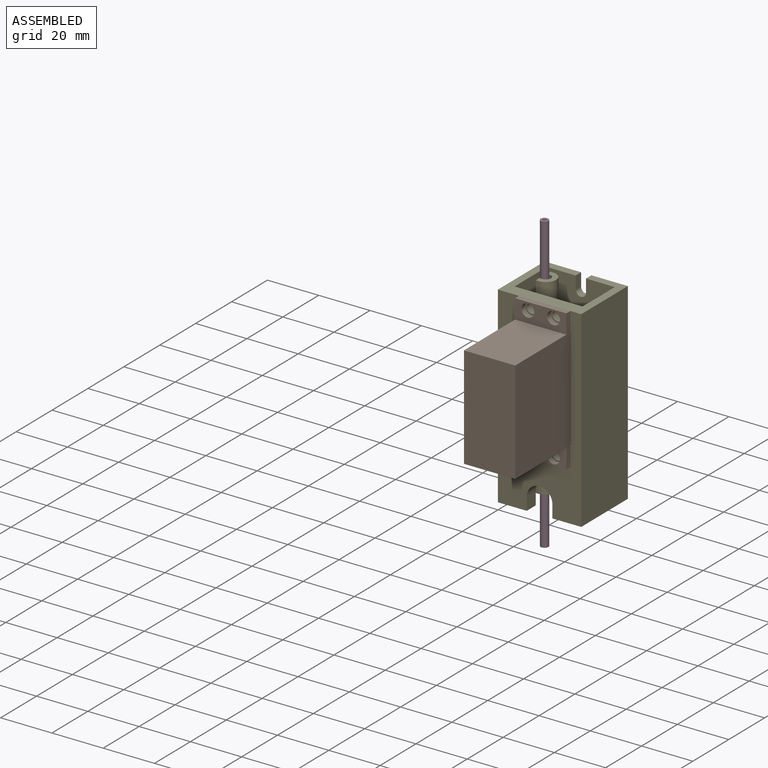
[diagram: assembled view]
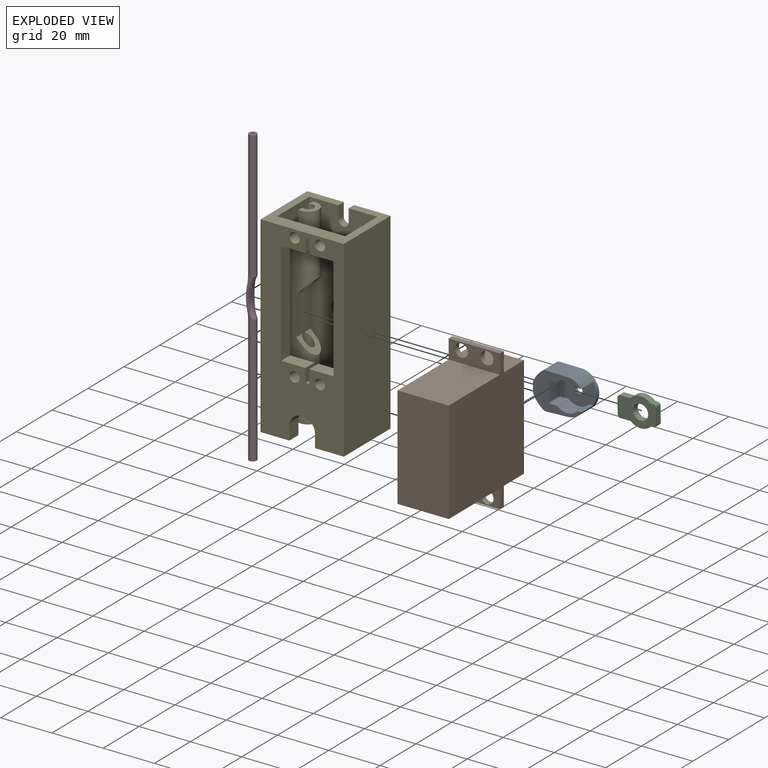
[diagram: exploded view]
GUIDED TOUR — FREECAD ASSEMBLY "ValveAssembly"

This assembly has 5 components, labeled P0..P4 below (a component is one placed body or linked part; the same part can appear more than once), held together by 0 modeled joints plus 6 derived contact edges. A joint is a constraint between two components; its type names the relative motion it leaves free:
  CONTACT — a derived adjacency edge — the two components touch in the source model (clearance under 2% of the assembly's diagonal); it is measured from the geometry, not a modeled constraint.
Axis/direction vectors are unit vectors and 'through' points are millimeter coordinates, both in the assembly's world frame.

MATES
  1. CONTACT "contact_0_1": P0 <-> P1, contact direction (0.000, -1.000, 0.000) through (-4.40, -2.05, 41.65) mm (derived from contact, not a modeled constraint)
  2. CONTACT "contact_0_2": P0 <-> P2, contact direction (1.000, 0.000, 0.000) through (0.76, 4.20, 43.25) mm (derived from contact, not a modeled constraint)
  3. CONTACT "contact_0_3": P0 <-> P3, contact direction (-1.000, 0.000, 0.000) through (-10.76, 5.20, 37.47) mm (derived from contact, not a modeled constraint)
  4. CONTACT "contact_1_2": P1 <-> P2, contact direction (-0.220, 0.898, -0.381) through (1.07, 1.90, 34.96) mm (derived from contact, not a modeled constraint)
  5. CONTACT "contact_1_4": P1 <-> P4, contact direction (-0.220, 0.898, -0.381) through (1.38, -14.00, 22.00) mm (derived from contact, not a modeled constraint)
  6. CONTACT "contact_3_4": P3 <-> P4, contact direction (1.000, 0.000, 0.000) through (-11.25, 2.70, 45.00) mm (derived from contact, not a modeled constraint)

ASSEMBLY ORDER
  1. P0 — the base component [order heuristic]
  2. P2 — core [order heuristic]
  3. P1 [order verified]
  4. P4 [order verified]
  5. P3 [order verified]
(P3 verified with a relaxed clearance tolerance: the source model stores slight part interference there.)
Order-tag legend:
  [order verified] — this step's position reverses a verified removal order: the component was checked to insert without passing through the ones already placed.
  [order heuristic] — the first 2 components form the assembly's core: parts whose collision-free extraction could not be verified, listed in mate-graph order.

Of the 5 components, 3 carry a construction recipe — the FreeCAD feature program (sketches with constraints, then the solid features that consume them) that regenerates the part from scratch, quoted from this document or from the linked companion document it references; the rest are supplied as boundary geometry only. The tour below walks the components in assembly order: each is shown spotlighted twice — in the assembled view, then in the exploded view, where a leader line traces a displaced component back to its assembled socket (components that stay in place when exploded have no leader line; saturated green if recipe-attached, orange if geometry-only; every other component desaturated gray) — followed by its recipe or geometry summary and the mates that hold it.
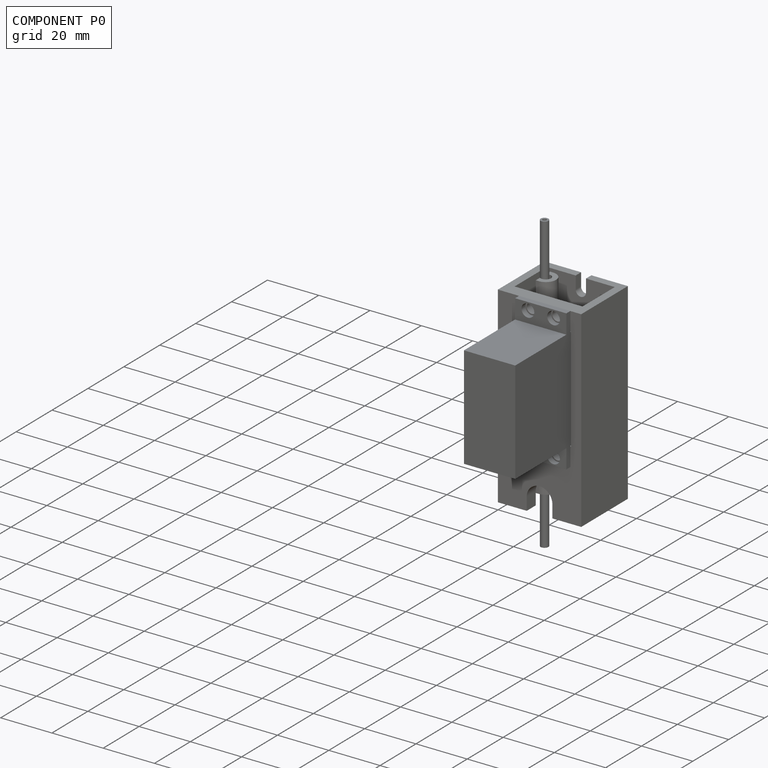
[diagram: component P0 — assembled]
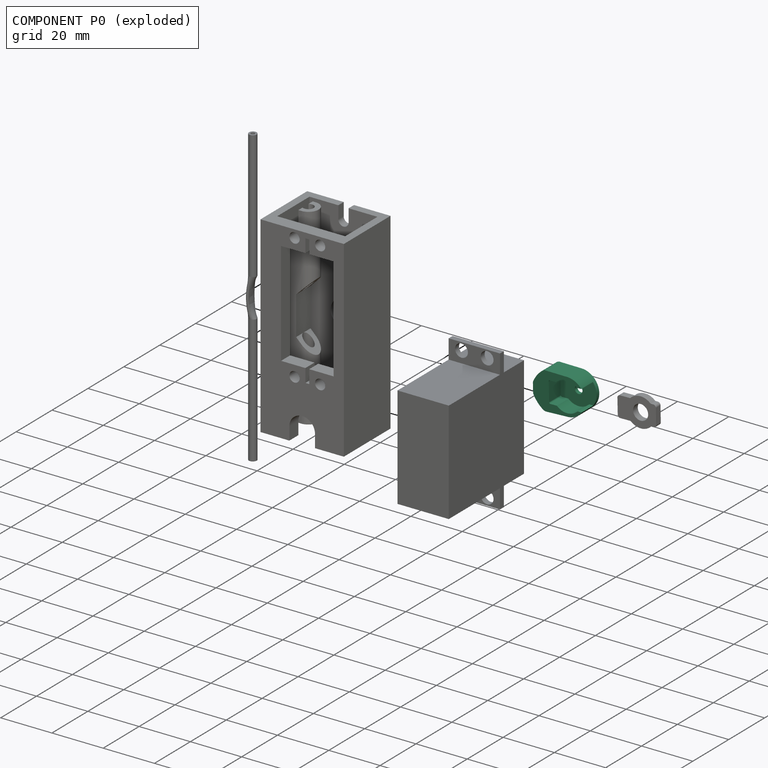
[diagram: component P0 — exploded]
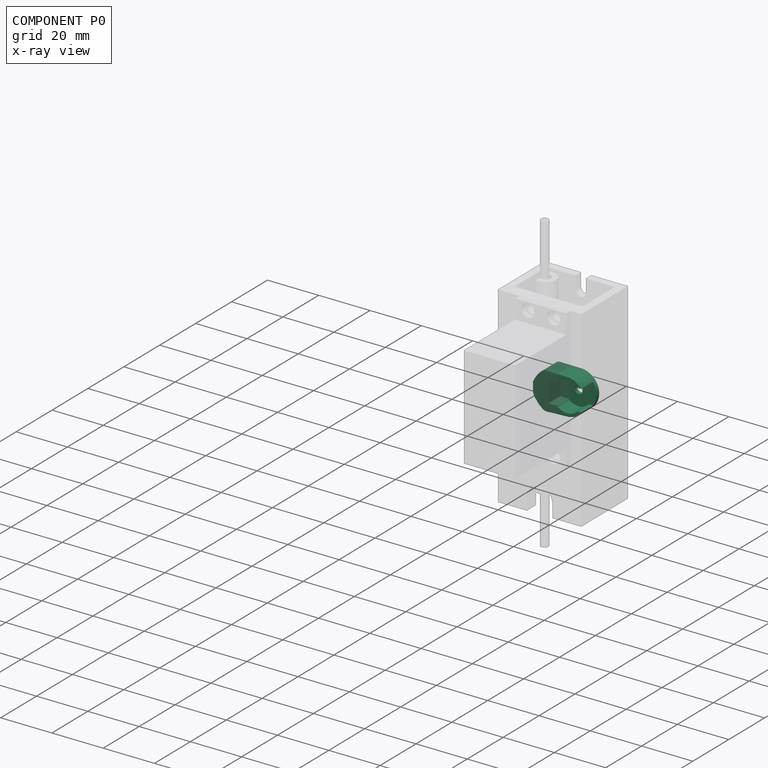
[diagram: component P0 — x-ray view]
COMPONENT P0 — recipe-attached ("Pincher001", a linked part whose construction recipe lives in a companion FreeCAD document of the same project; that document's serialized recipe follows).
Held by: resting contact with P1 (derived edge); resting contact with P2 (derived edge); resting contact with P3 (derived edge).
Construction recipe (the companion document, serialized — sketch geometry with constraints, then the solid features built on it; lengths are millimeters unless a unit is written):

FCSTD DOCUMENT  (FreeCAD 1.1R20260414 (Git shallow))
Label: Pincher
Comment: Source: ServoQuetsch https://gitlab.com/mikeventor1/ServoQuetsch (CERN-OHL-P-2.0). Multi-file bundle: parts driven by VarSet in V.FCStd.
License: CERN Open Hardware Licence Version 2 - Permissive
LicenseURL: https://ohwr.org/cernohl
objects: Sketcher::SketchObject×3, PartDesign::Mirrored×2, PartDesign::Pocket×2, App::Point×1, PartDesign::Pad×1, PartDesign::Fillet×1, PartDesign::Body×1
note: 23 computed .brp shape members not serialized (recipe doc carries the construction recipe); baked Part::Feature solids carry a one-line shape summary decoded from their .brp
EXTERNAL_REF file=V.FCStd obj=VarSet

FEATURE [App::Point] Origin001  label="Ursprung"
  Role = Origin
FEATURE [Sketcher::SketchObject] Sketch004  label="Pincher"
  ArcFitTolerance = 1e-06
  AttachmentSupport = -> [Origin]
  ExternalTypes = [0,0]
  FullyConstrained = true
  MakeInternals = false
  MapMode = 5
  _ExternalGeoVersion = 1
  expr: .Constraints.PinchStartAngle = <<V>>#<<VarSet>>.PinchStartAngle
  expr: Constraints[3] = <<V>>#<<VarSet>>.PinchEndL
  expr: Constraints[4] = <<V>>#<<VarSet>>.PinchStartL
  expr: Constraints[6] = <<V>>#<<VarSet>>.PinchStartAngle / 2
  expr: Constraints[7] = (<<V>>#<<VarSet>>.PinchEndL + <<V>>#<<VarSet>>.PinchStartL) / 2
  sketch-geometry (16):
    g0: GeomPoint X=13.25 Y=-2 Z=0
    g1: LineSegment [constr] StartX=13.25 StartY=-2 StartZ=0 EndX=0 EndY=-2 EndZ=0
    g2: LineSegment [constr] StartX=13.25 StartY=-2 StartZ=0 EndX=4.37324 EndY=-7.125 EndZ=0
    g3: LineSegment [constr] StartX=13.25 StartY=-2 StartZ=0 EndX=1.90037 EndY=-5.04112 EndZ=0
    g4: ArcOfCircle CenterX=11.1148 CenterY=2.83301 CenterZ=0 NormalX=0 NormalY=0 NormalZ=1 AngleXU=0 Radius=12.1205 StartAngle=3.59119 EndAngle=4.06202
    g5: LineSegment StartX=0 StartY=0 StartZ=0 EndX=0 EndY=-1.5654 EndZ=0
    g6: ArcOfCircle CenterX=2 CenterY=-1.5654 CenterZ=0 NormalX=0 NormalY=0 NormalZ=1 AngleXU=0 Radius=2 StartAngle=3.14159 EndAngle=3.59119
    g7: LineSegment [constr] StartX=0 StartY=-1.5654 StartZ=0 EndX=0.198755 EndY=-2.4346 EndZ=0
    g8: LineSegment [constr] StartX=0 StartY=0 StartZ=0 EndX=13.25 EndY=0 EndZ=0
    g9: ArcOfCircle CenterX=13.25 CenterY=0 CenterZ=0 NormalX=0 NormalY=0 NormalZ=1 AngleXU=0 Radius=7 StartAngle=4.73897 EndAngle=6.28319
    g10: LineSegment StartX=0 StartY=0 StartZ=0 EndX=20.25 EndY=0 EndZ=0
    g11: LineSegment StartX=5.04013 StartY=-7.22079 StartZ=0 EndX=13.4361 EndY=-6.99753 EndZ=0
    g12: ArcOfCircle CenterX=4.98696 CenterY=-5.22149 CenterZ=0 NormalX=0 NormalY=0 NormalZ=1 AngleXU=0 Radius=2 StartAngle=4.06202 EndAngle=4.73897
    g13: LineSegment [constr] StartX=2 StartY=-1.5654 StartZ=0 EndX=0.0993777 EndY=-2 EndZ=0
    g14: LineSegment [constr] StartX=3.776 StartY=-6.81321 StartZ=0 EndX=4.37324 EndY=-7.125 EndZ=0
    g15: LineSegment [constr] StartX=4.37324 StartY=-7.125 StartZ=0 EndX=5.04013 EndY=-7.22079 EndZ=0
  constraints (40):
    c: Coincident(g1,g0)
    c: Coincident(g2,g0)
    c: Angle(g1,g2) = 0.523599  'PinchStartAngle'
    c: DistanceX(g1,g1) = 13.25
    c: Distance(g2,g2) = 10.25
    c: Coincident(g3,g0)
    c: Angle(g1,g3) = 0.261799
    c: Distance(g3,g3) = 11.75
    c: PointOnObject(g3,g4)
    c: Coincident(g5,g-1)
    c: PointOnObject(g1,g-2)
    c: DistanceY(g1,g5) = 2
    c: Tangent(g5,g6) = -1.5708
    c: Tangent(g4,g6) = -1.5708
    c: Radius(g6) = 2
    c: Vertical(g5)
    c: Coincident(g7,g5)
    c: Coincident(g7,g4)
    c: Coincident(g8,g5)
    c: PointOnObject(g8,g-1)
    c: Equal(g8,g1)
    c: Coincident(g9,g8)
    c: PointOnObject(g9,g-1)
    c: Coincident(g10,g5)
    c: Coincident(g10,g9)
    c: Radius(g9) = 7
    c: Tangent(g11,g9) = -1.5708
    c: Tangent(g11,g12) = -1.5708
    c: Tangent(g4,g12) = -1.5708
    c: Radius(g12) = 2
    c: Coincident(g13,g6)
    c: Symmetric(g7,g7,g13)
    c: PointOnObject(g13,g1)
    c: PointOnObject(g2,g12)
    c: Horizontal(g1)
    c: Coincident(g14,g4)
    c: Coincident(g14,g2)
    c: Coincident(g15,g2)
    c: Coincident(g15,g11)
    c: Equal(g15,g14)
FEATURE [PartDesign::Pad] Pad
  Direction = (0,0,1)
  Length = 8
  Length2 = 10
  Profile = -> Sketch004
  ReferenceAxis = -> Sketch004 [N_Axis]
  SideType = 0
  Suppressed = false
  Type = 0
  Type2 = 0
  expr: Length = <<V>>#<<VarSet>>.PincherH
FEATURE [PartDesign::Mirrored] Mirrored
  BaseFeature = -> Pad
  MirrorPlane = -> Sketch004 [H_Axis]
  Originals = -> [Pad]
  Suppressed = false
  TransformMode = 0
FEATURE [Sketcher::SketchObject] Sketch
  ArcFitTolerance = 1e-06
  AttachmentSupport = -> [Origin]
  ExternalGeometry = -> [Mirrored]
  ExternalTypes = [0]
  FullyConstrained = true
  MakeInternals = false
  MapMode = 5
  _ExternalGeoVersion = 1
  sketch-geometry (1):
    g0: Circle CenterX=13.25 CenterY=0 CenterZ=0 NormalX=0 NormalY=0 NormalZ=1 AngleXU=0 Radius=1.5
  constraints (2):
    c: Coincident(g0,g-3)
    c: Diameter(g0) = 3
FEATURE [Sketcher::SketchObject] Sketch005  label="ServoConnect"
  ArcFitTolerance = 1e-06
  AttachmentSupport = -> [Mirrored]
  ExternalGeometry = -> [Mirrored]
  ExternalTypes = [0]
  FullyConstrained = true
  MakeInternals = false
  MapMode = 5
  Placement = pos=(0,0,8) rot=(0,0,1;0rad)
  _ExternalGeoVersion = 1
  expr: Constraints[10] = 4 + <<V>>#<<VarSet>>.ServoConnectOffset
  expr: Constraints[15] = 5.65 + <<V>>#<<VarSet>>.ServoConnectOffset
  sketch-geometry (6):
    g0: LineSegment StartX=17.2917 StartY=-4.125 StartZ=0 EndX=20.2917 EndY=-4.125 EndZ=0
    g1: LineSegment StartX=20.2917 StartY=-4.125 StartZ=0 EndX=20.2917 EndY=0 EndZ=0
    g2: LineSegment StartX=9.20834 StartY=-4.125 StartZ=0 EndX=6.20834 EndY=-4.125 EndZ=0
    g3: LineSegment StartX=6.20834 StartY=-4.125 StartZ=0 EndX=6.20834 EndY=0 EndZ=0
    g4: LineSegment StartX=20.2917 StartY=0 StartZ=0 EndX=6.20834 EndY=0 EndZ=0
    g5: ArcOfCircle CenterX=13.25 CenterY=0 CenterZ=0 NormalX=0 NormalY=0 NormalZ=1 AngleXU=0 Radius=5.775 StartAngle=3.9372 EndAngle=5.48758
  constraints (17):
    c: Coincident(g1,g0)
    c: Coincident(g3,g2)
    c: Equal(g2,g0)
    c: Coincident(g4,g1)
    c: Coincident(g4,g3)
    c: Perpendicular(g2,g3)
    c: Perpendicular(g1,g0)
    c: Perpendicular(g4,g1)
    c: Perpendicular(g3,g4)
    c: Distance(g0,g0) = 3
    c: Distance(g1,g1) = 4.125
    c: Horizontal(g4)
    c: Symmetric(g4,g4,g5)
    c: Coincident(g5,g2)
    c: Coincident(g5,g0)
    c: Radius(g5) = 5.775
    c: Coincident(g5,g-3)
FEATURE [PartDesign::Pocket] Pocket
  BaseFeature = -> Mirrored
  Direction = (0,0,-1)
  Length = 6.5
  Length2 = 5
  Profile = -> Sketch005
  ReferenceAxis = -> Sketch005 [N_Axis]
  SideType = 0
  Suppressed = false
  Type = 0
  Type2 = 0
  expr: Length = <<V>>#<<VarSet>>.PincherH - <<V>>#<<VarSet>>.PinchBottomT
FEATURE [PartDesign::Mirrored] Mirrored001
  BaseFeature = -> Pocket
  MirrorPlane = -> Sketch005 [H_Axis]
  Originals = -> [Pocket]
  Suppressed = false
  TransformMode = 0
FEATURE [PartDesign::Pocket] Pocket001
  BaseFeature = -> Mirrored001
  Direction = (0,0,-1)
  Length = 5
  Length2 = 5
  Profile = -> Sketch
  ReferenceAxis = -> Sketch [N_Axis]
  Reversed = true
  SideType = 0
  Suppressed = false
  Type = 1
  Type2 = 0
FEATURE [PartDesign::Fillet] Fillet
  Base = -> Pocket001 [Edge65,Edge52]
  BaseFeature = -> Pocket001
  Radius = 0.5
  SupportTransform = false
  Suppressed = false
  UseAllEdges = false
FEATURE [PartDesign::Body] Body  label="Pincher001"
  AllowCompound = false
  Group = -> [Sketch004,Pad,Mirrored,Sketch,Sketch005,Pocket,Mirrored001,Pocket001,Fillet]
  Origin = -> Origin
  Tip = -> Fillet
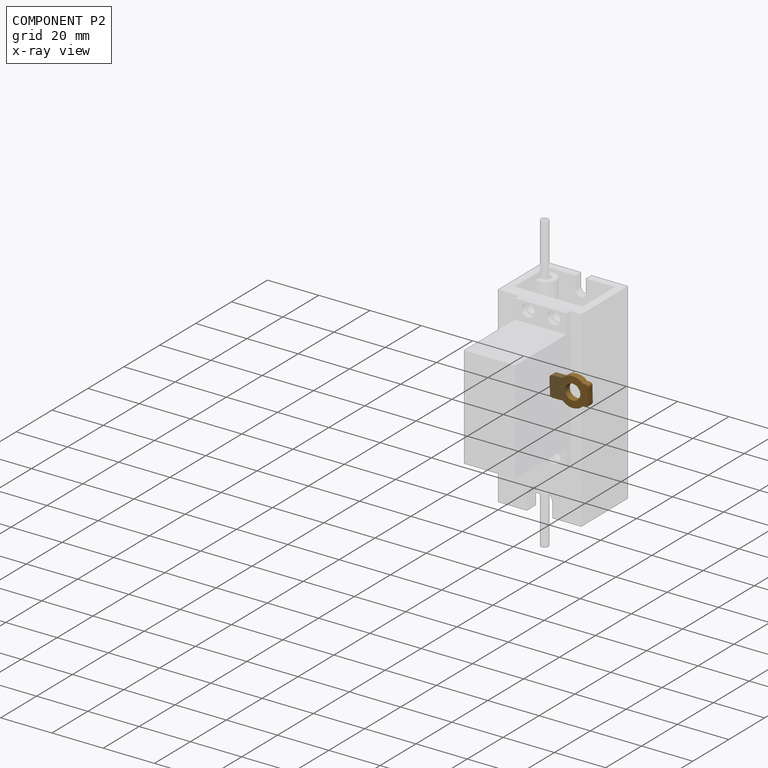
[diagram: component P2 — x-ray view]
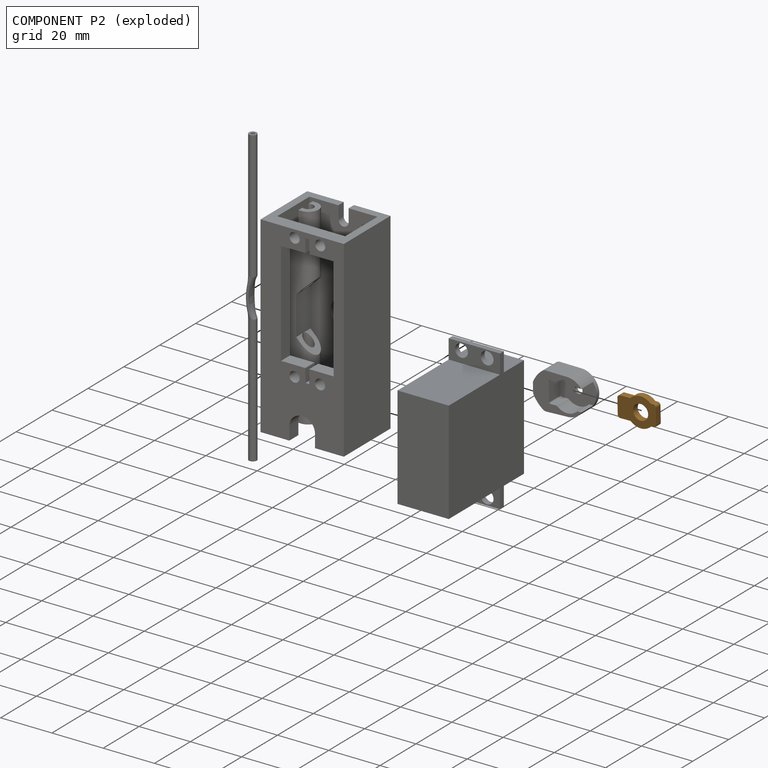
[diagram: component P2 — exploded]
COMPONENT P2 — geometry summary ("ServoConnector"; no construction recipe available for this part):
  bounding box: 15.1 x 11.3 x 2.6 mm
  tessellated surface: 1,308 triangles
  volume: 286 mm^3 (64% of its bounding box)
  symmetry: mirror-symmetric across its y mid-plane
Held by: resting contact with P0 (derived edge); resting contact with P1 (derived edge).
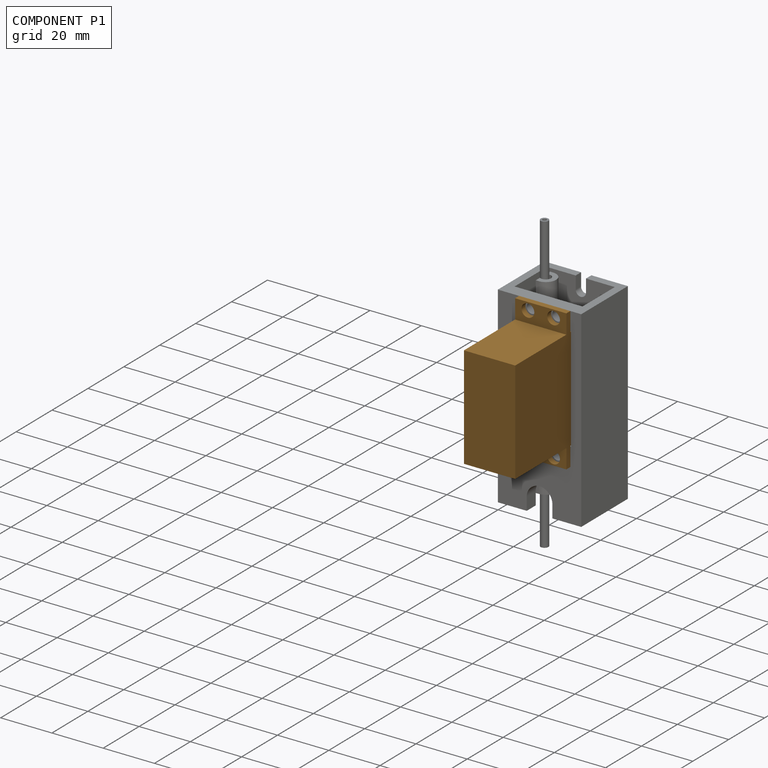
[diagram: component P1 — assembled]
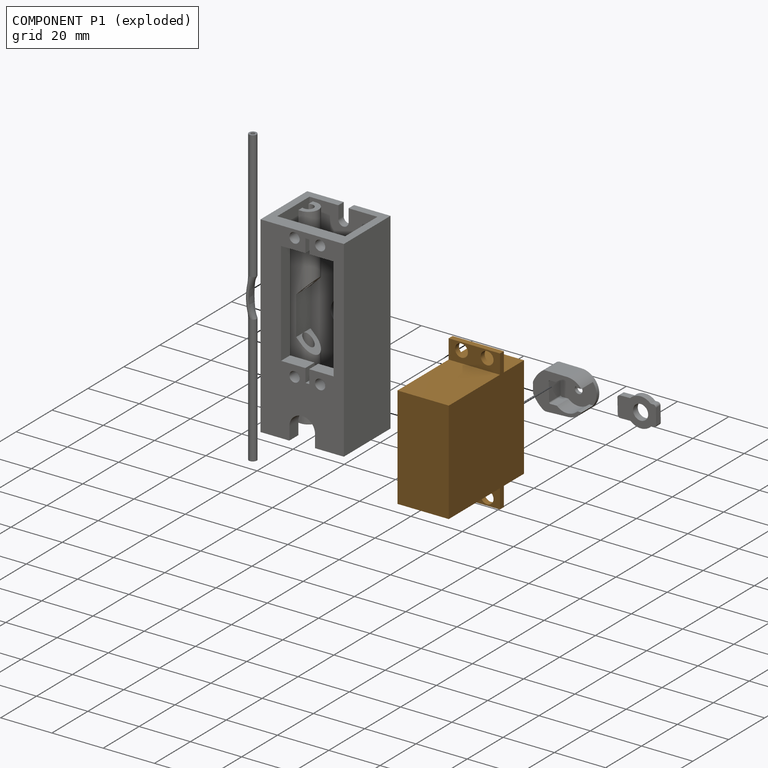
[diagram: component P1 — exploded]
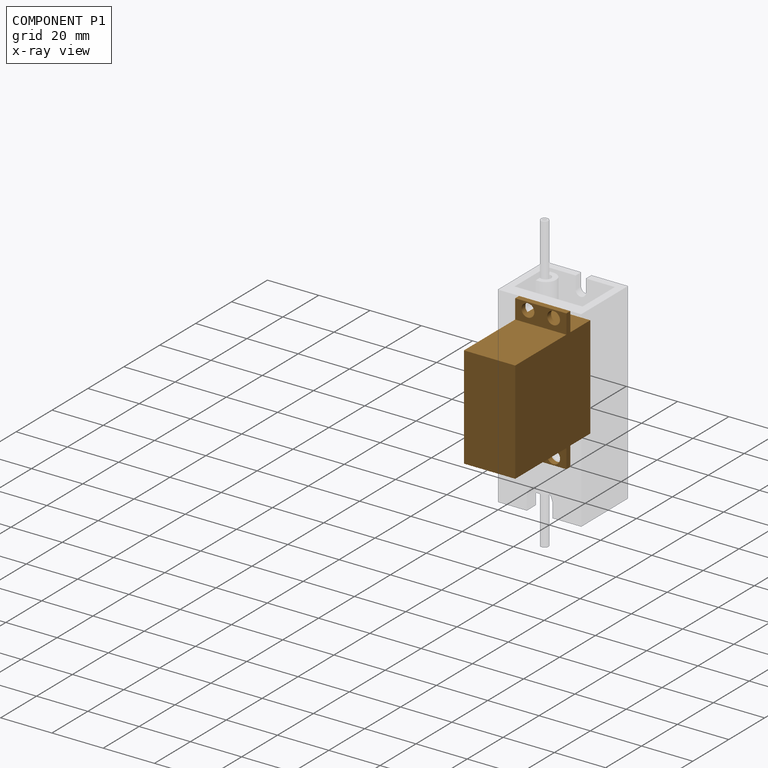
[diagram: component P1 — x-ray view]
COMPONENT P1 — geometry summary ("Servo"; no construction recipe available for this part):
  bounding box: 55.0 x 46.9 x 20.0 mm
  tessellated surface: 3,108 triangles
  volume: 34302 mm^3 (66% of its bounding box)
Held by: resting contact with P0 (derived edge); resting contact with P2 (derived edge); resting contact with P4 (derived edge).
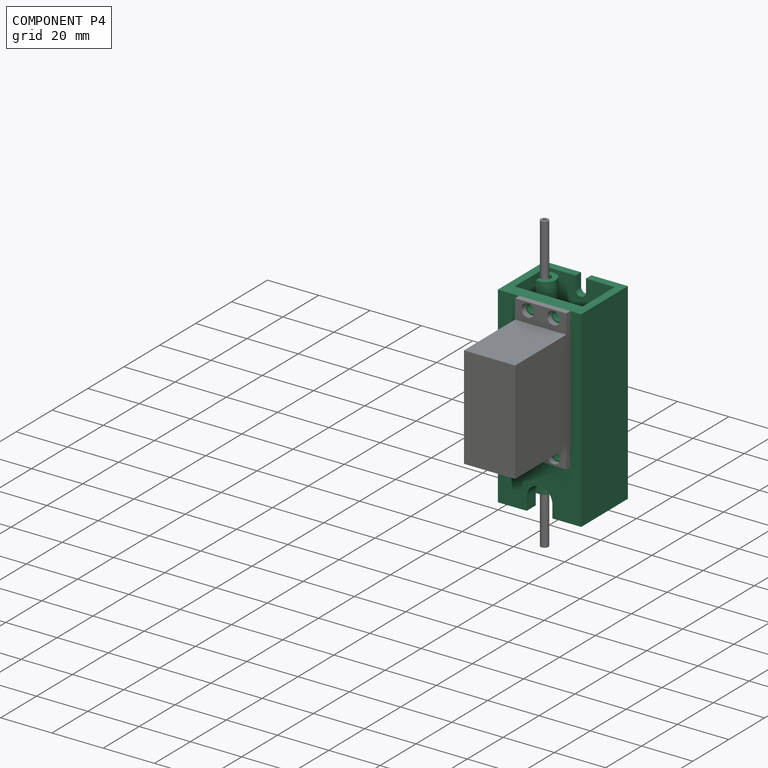
[diagram: component P4 — assembled]
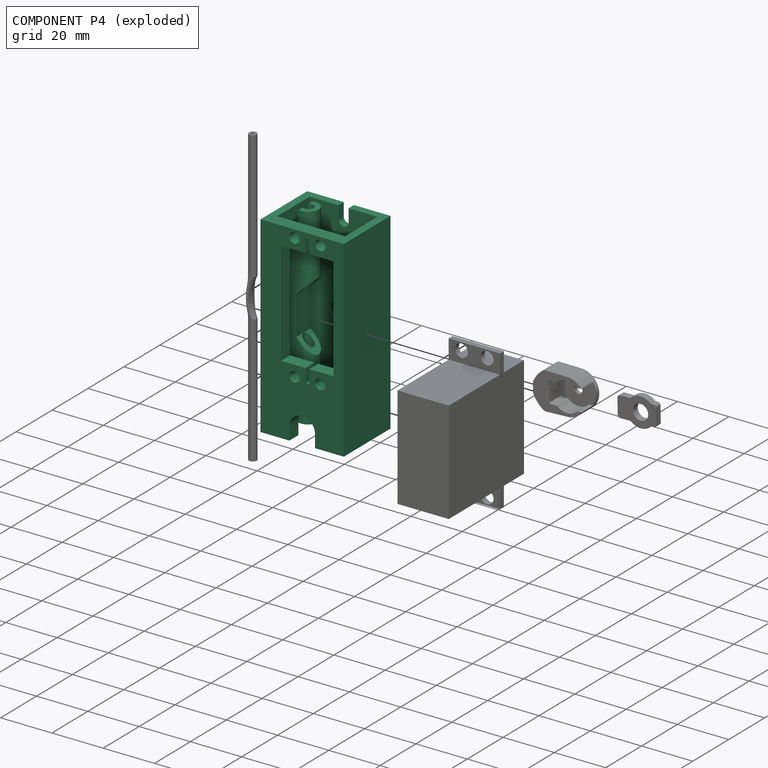
[diagram: component P4 — exploded]
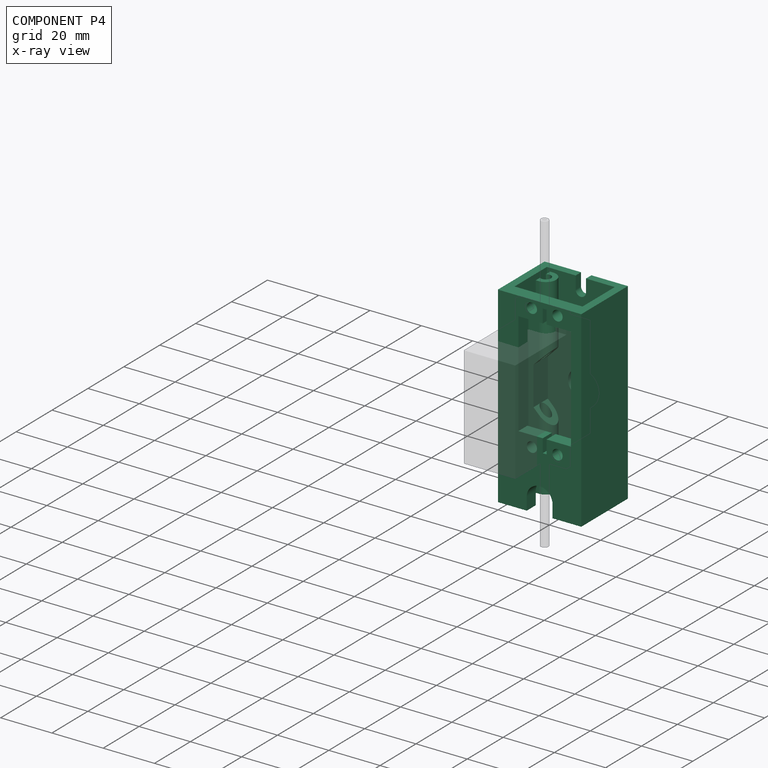
[diagram: component P4 — x-ray view]
COMPONENT P4 — recipe-attached ("ValveBody", a linked part whose construction recipe lives in a companion FreeCAD document of the same project; that document's serialized recipe follows).
Held by: resting contact with P1 (derived edge); resting contact with P3 (derived edge).
Construction recipe (the companion document, serialized — sketch geometry with constraints, then the solid features built on it; lengths are millimeters unless a unit is written):

FCSTD DOCUMENT  (FreeCAD 1.1R20260414 (Git shallow))
Label: ValveBody
Comment: Source: ServoQuetsch https://gitlab.com/mikeventor1/ServoQuetsch (CERN-OHL-P-2.0). Multi-file bundle: parts driven by VarSet in V.FCStd.
License: CERN Open Hardware Licence Version 2 - Permissive
LicenseURL: https://ohwr.org/cernohl
objects: Sketcher::SketchObject×8, PartDesign::Pocket×6, PartDesign::Pad×2, App::Point×1, PartDesign::Mirrored×1, Part::DatumPlane×1, PartDesign::Body×1
note: 43 computed .brp shape members not serialized (recipe doc carries the construction recipe); baked Part::Feature solids carry a one-line shape summary decoded from their .brp
EXTERNAL_REF file=V.FCStd obj=VarSet

FEATURE [App::Point] Origin001  label="Ursprung"
  Role = Origin
FEATURE [Sketcher::SketchObject] Sketch
  ArcFitTolerance = 1e-06
  AttachmentSupport = -> [Origin]
  ExternalTypes = [0]
  FullyConstrained = true
  MakeInternals = false
  MapMode = 5
  _ExternalGeoVersion = 1
  expr: Constraints[17] = <<V>>#<<VarSet>>.WallW
  expr: Constraints[20] = <<V>>#<<VarSet>>.ValveW / 2
  expr: Constraints[21] = <<V>>#<<VarSet>>.SevoHeadH
  expr: Constraints[24] = <<V>>#<<VarSet>>.ValveD
  sketch-geometry (10):
    g0: LineSegment StartX=0 StartY=-9 StartZ=0 EndX=0 EndY=-14 EndZ=0
    g1: LineSegment StartX=0 StartY=-14 StartZ=0 EndX=-13.25 EndY=-14 EndZ=0
    g2: LineSegment StartX=-13.25 StartY=-14 StartZ=0 EndX=-16.25 EndY=-14 EndZ=0
    g3: LineSegment StartX=-16.25 StartY=-14 StartZ=0 EndX=-16.25 EndY=12 EndZ=0
    g4: LineSegment StartX=-16.25 StartY=12 StartZ=0 EndX=0 EndY=12 EndZ=0
    g5: LineSegment StartX=0 StartY=12 StartZ=0 EndX=0 EndY=9 EndZ=0
    g6: LineSegment StartX=0 StartY=9 StartZ=0 EndX=-13.25 EndY=9 EndZ=0
    g7: LineSegment StartX=-13.25 StartY=9 StartZ=0 EndX=-13.25 EndY=-9 EndZ=0
    g8: LineSegment StartX=-13.25 StartY=-9 StartZ=0 EndX=0 EndY=-9 EndZ=0
    g9: GeomPoint X=-13.25 Y=0 Z=0
  constraints (28):
    c: PointOnObject(g0,g-2)
    c: Coincident(g0,g1)
    c: Horizontal(g1)
    c: Horizontal(g2)
    c: Coincident(g2,g3)
    c: Vertical(g3)
    c: Coincident(g3,g4)
    c: PointOnObject(g4,g-2)
    c: Horizontal(g4)
    c: Coincident(g4,g5)
    c: PointOnObject(g5,g-2)
    c: Coincident(g5,g6)
    c: Horizontal(g6)
    c: Coincident(g6,g7)
    c: Vertical(g7)
    c: Coincident(g7,g8)
    c: Coincident(g8,g0)
    c: DistanceX(g2,g2) = 3
    c: Vertical(g7,g1)
    c: Equal(g2,g5)
    c: DistanceX(g4,g4) = 16.25
    c: Distance(g0,g0) = 5
    c: PointOnObject(g0,g-2)
    c: Horizontal(g8)
    c: DistanceY(g7,g7) = 18
    c: Symmetric(g7,g7,g9)
    c: PointOnObject(g9,g-1)
    c: Coincident(g1,g2)
FEATURE [PartDesign::Pad] Pad
  Direction = (0,0,1)
  Length = 75
  Length2 = 10
  Profile = -> Sketch
  ReferenceAxis = -> Sketch [N_Axis]
  SideType = 0
  Suppressed = false
  Type = 0
  Type2 = 0
  expr: Length = <<V>>#<<VarSet>>.ServoH + <<V>>#<<VarSet>>.ValveHOffset
FEATURE [PartDesign::Mirrored] Mirrored
  BaseFeature = -> Pad
  MirrorPlane = -> Sketch [V_Axis]
  Originals = -> [Pad]
  Suppressed = false
  TransformMode = 0
FEATURE [Sketcher::SketchObject] Sketch001  label="Tubehousing"
  ArcFitTolerance = 1e-06
  AttachmentSupport = -> [Origin]
  ExternalGeometry = -> [Mirrored]
  ExternalTypes = [0]
  FullyConstrained = true
  MakeInternals = false
  MapMode = 5
  _ExternalGeoVersion = 1
  expr: Constraints[0] = <<V>>#<<VarSet>>.TubeOD + <<V>>#<<VarSet>>.TubeClearance
  expr: Constraints[11] = <<V>>#<<VarSet>>.TubeToWall
  expr: Constraints[12] = <<V>>#<<VarSet>>.TubeZDist
  expr: Constraints[6] = <<V>>#<<VarSet>>.TubholderT
  sketch-geometry (5):
    g0: Circle CenterX=-9.25 CenterY=2.7 CenterZ=0 NormalX=0 NormalY=0 NormalZ=1 AngleXU=0 Radius=2
    g1: LineSegment StartX=-13.25 StartY=6.7 StartZ=0 EndX=-9.25 EndY=6.7 EndZ=0
    g2: LineSegment StartX=-13.25 StartY=-1.3 StartZ=0 EndX=-9.25 EndY=-1.3 EndZ=0
    g3: ArcOfCircle CenterX=-9.25 CenterY=2.7 CenterZ=0 NormalX=0 NormalY=0 NormalZ=1 AngleXU=0 Radius=4 StartAngle=4.71239 EndAngle=7.85398
    g4: LineSegment StartX=-13.25 StartY=6.7 StartZ=0 EndX=-13.25 EndY=-1.3 EndZ=0
  constraints (13):
    c: Diameter(g0) = 4
    c: Horizontal(g1)
    c: Coincident(g3,g0)
    c: Horizontal(g2)
    c: Tangent(g3,g1) = 1.5708
    c: Tangent(g3,g2) = -1.5708
    c: Distance(g0,g3) = 2
    c: Coincident(g4,g1)
    c: Coincident(g4,g2)
    c: Vertical(g4)
    c: PointOnObject(g1,g-3)
    c: Distance(g0,g-3) = 2
    c: DistanceY(g-3,g0) = 11.7
FEATURE [Sketcher::SketchObject] Sketch004  label="ServoCutout"
  ArcFitTolerance = 1e-06
  AttachmentOffset = pos=(2,0,0) rot=(0,0,1;0rad)
  AttachmentSupport = -> [Origin]
  ExternalGeometry = -> [Mirrored]
  ExternalTypes = [0,0]
  FullyConstrained = true
  MakeInternals = false
  MapMode = 5
  Placement = pos=(2,0,0) rot=(1,0,0;1.5708rad)
  _ExternalGeoVersion = 1
  expr: .AttachmentOffset.Base.x = <<V>>#<<VarSet>>.TubeToWall
  expr: Constraints[6] = <<V>>#<<VarSet>>.ServoW + <<V>>#<<VarSet>>.ServoClearance
  expr: Constraints[7] = <<V>>#<<VarSet>>.ServoInnerH + <<V>>#<<VarSet>>.ServoClearance
  sketch-geometry (22):
    g0: LineSegment StartX=-10.25 StartY=67.75 StartZ=0 EndX=-10.25 EndY=27.25 EndZ=0
    g1: LineSegment StartX=-10.25 StartY=27.25 StartZ=0 EndX=-0.75 EndY=27.25 EndZ=0
    g2: LineSegment StartX=10.25 StartY=27.25 StartZ=0 EndX=10.25 EndY=67.75 EndZ=0
    g3: LineSegment StartX=10.25 StartY=67.75 StartZ=0 EndX=0.75 EndY=67.75 EndZ=0
    g4: LineSegment StartX=-0.75 StartY=22 StartZ=0 EndX=0.75 EndY=22 EndZ=0
    g5: LineSegment StartX=0.75 StartY=22 StartZ=0 EndX=0.75 EndY=27.25 EndZ=0
    g6: LineSegment StartX=0.75 StartY=73 StartZ=0 EndX=-0.75 EndY=73 EndZ=0
    g7: LineSegment StartX=-0.75 StartY=73 StartZ=0 EndX=-0.75 EndY=67.75 EndZ=0
    g8: LineSegment StartX=0.75 StartY=67.75 StartZ=0 EndX=0.75 EndY=73 EndZ=0
    g9: LineSegment StartX=-0.75 StartY=27.25 StartZ=0 EndX=-0.75 EndY=22 EndZ=0
    g10: LineSegment StartX=-0.75 StartY=67.75 StartZ=0 EndX=-10.25 EndY=67.75 EndZ=0
    g11: LineSegment StartX=0.75 StartY=27.25 StartZ=0 EndX=10.25 EndY=27.25 EndZ=0
    g12: Circle CenterX=-5 CenterY=72 CenterZ=0 NormalX=0 NormalY=0 NormalZ=1 AngleXU=0 Radius=2
    g13: Circle CenterX=5 CenterY=72 CenterZ=0 NormalX=0 NormalY=0 NormalZ=1 AngleXU=0 Radius=2
    g14: Circle CenterX=-5 CenterY=23 CenterZ=0 NormalX=0 NormalY=0 NormalZ=1 AngleXU=0 Radius=2
    g15: Circle CenterX=5 CenterY=23 CenterZ=0 NormalX=0 NormalY=0 NormalZ=1 AngleXU=0 Radius=2
    g16: GeomPoint X=5 Y=70 Z=0
    g17: LineSegment [constr] StartX=-5 StartY=72 StartZ=0 EndX=0 EndY=72 EndZ=0
    g18: LineSegment [constr] StartX=0 StartY=72 StartZ=0 EndX=5 EndY=72 EndZ=0
    g19: GeomPoint X=0 Y=47.5 Z=0
    g20: LineSegment [constr] StartX=-5 StartY=72 StartZ=0 EndX=-5 EndY=67.75 EndZ=0
    g21: LineSegment [constr] StartX=-5 StartY=23 StartZ=0 EndX=-5 EndY=27.25 EndZ=0
  constraints (61):
    c: Coincident(g0,g1)
    c: Coincident(g11,g2)
    c: Coincident(g2,g3)
    c: Coincident(g10,g0)
    c: Vertical(g0)
    c: Vertical(g2)
    c: DistanceX(g10,g3) = 20.5
    c: DistanceY(g2,g2) = 40.5
    c: Coincident(g4,g5)
    c: Coincident(g8,g6)
    c: Coincident(g6,g7)
    c: Coincident(g9,g4)
    c: Horizontal(g4)
    c: DistanceY(g8,g-4) = 2
    c: DistanceX(g6,g6) = 1.5
    c: Vertical(g5)
    c: Vertical(g8)
    c: Vertical(g7)
    c: Vertical(g9)
    c: Horizontal(g3)
    c: Horizontal(g10)
    c: Coincident(g8,g3)
    c: Coincident(g7,g10)
    c: Horizontal(g1)
    c: Horizontal(g11)
    c: Coincident(g5,g11)
    c: Coincident(g9,g1)
    c: Horizontal(g7,g3)
    c: Horizontal(g1,g5)
    c: Vertical(g5,g3)
    c: Vertical(g1,g7)
    c: DistanceX(g12,g13) = 10
    c: Diameter(g13) = 4
    c: PointOnObject(g16,g13)
    c: Vertical(g16,g13)
    c: Equal(g13,g12)
    c: Equal(g12,g14)
    c: Equal(g14,g15)
    c: Coincident(g17,g12)
    c: Horizontal(g17)
    c: Coincident(g18,g17)
    c: Coincident(g18,g13)
    c: Equal(g18,g17)
    c: Horizontal(g18)
    c: PointOnObject(g17,g-2)
    c: Horizontal(g14,g15)
    c: Vertical(g14,g12)
    c: Vertical(g13,g15)
    c: PointOnObject(g19,g-2)
    c: DistanceY(g7,g7) = 5.25
    c: Equal(g7,g9)
    c: Coincident(g20,g12)
    c: PointOnObject(g20,g10)
    c: Vertical(g20)
    c: DistanceY(g20,g20) = 4.25
    c: Coincident(g21,g14)
    c: PointOnObject(g21,g1)
    c: Perpendicular(g1,g21)
    c: Equal(g21,g20)
    c: Symmetric(g0,g2,g19)
    c: Symmetric(g6,g6,g-2)
FEATURE [PartDesign::Pocket] Pocket002
  BaseFeature = -> Mirrored
  Direction = (0,1,-2e-16)
  Length = 5
  Length2 = 5
  Profile = -> Sketch004
  ReferenceAxis = -> Sketch004 [N_Axis]
  Reversed = true
  SideType = 0
  Suppressed = false
  Type = 1
  Type2 = 0
FEATURE [PartDesign::Pad] Pad001
  BaseFeature = -> Pocket002
  Direction = (0,0,1)
  Length = 10
  Length2 = 10
  Profile = -> Sketch001
  ReferenceAxis = -> Sketch001 [N_Axis]
  SideType = 0
  Suppressed = false
  Type = 3
  Type2 = 0
  UpToFace = -> Mirrored [Face5]
FEATURE [Part::DatumPlane] DatumPlane
  AttachmentOffset = pos=(0,0,0) rot=(0,-1,0;1.5708rad)
  AttachmentSupport = -> [Pad001]
  MapMode = 11
  Placement = pos=(-9.25,2.7,75) rot=(0.57735,-0.57735,-0.57735;4.18879rad)
FEATURE [Sketcher::SketchObject] Sketch002
  ArcFitTolerance = 1e-06
  AttachmentSupport = -> [DatumPlane]
  ExternalGeometry = -> [Pad001]
  ExternalTypes = [0,0,0]
  FullyConstrained = true
  MakeInternals = false
  MapMode = 5
  Placement = pos=(-9.25,2.7,75) rot=(0.57735,-0.57735,-0.57735;4.18879rad)
  _ExternalGeoVersion = 1
  expr: Constraints[5] = <<V>>#<<VarSet>>.CutoutH
  sketch-geometry (6):
    g0: LineSegment [constr] StartX=0 StartY=2 StartZ=0 EndX=75 EndY=2 EndZ=0
    g1: GeomPoint [constr] X=37.5 Y=2 Z=0
    g2: LineSegment StartX=30 StartY=2 StartZ=0 EndX=45 EndY=2 EndZ=0
    g3: LineSegment StartX=30 StartY=2 StartZ=0 EndX=24 EndY=-4 EndZ=0
    g4: LineSegment StartX=24 StartY=-4 StartZ=0 EndX=51 EndY=-4 EndZ=0
    g5: LineSegment StartX=51 StartY=-4 StartZ=0 EndX=45 EndY=2 EndZ=0
  constraints (14):
    c: Coincident(g0,g-3)
    c: Coincident(g0,g-4)
    c: Symmetric(g0,g0,g1)
    c: Horizontal(g2)
    c: Symmetric(g2,g2,g1)
    c: DistanceX(g2,g2) = 15
    c: Coincident(g2,g3)
    c: Coincident(g3,g4)
    c: Horizontal(g4)
    c: Coincident(g4,g5)
    c: Coincident(g5,g2)
    c: Angle(g0,g3) = 0.785398
    c: Angle(g5,g0) = 0.785398
    c: Horizontal(g3,g-5)
FEATURE [Sketcher::SketchObject] Sketch003  label="TubeZipTieCut"
  ArcFitTolerance = 1e-06
  AttachmentSupport = -> [DatumPlane]
  ExternalGeometry = -> [Pad001]
  ExternalTypes = [0]
  FullyConstrained = true
  MakeInternals = false
  MapMode = 5
  Placement = pos=(-9.25,2.7,75) rot=(0.57735,-0.57735,-0.57735;4.18879rad)
  _ExternalGeoVersion = 1
  expr: Constraints[10] = <<V>>#<<VarSet>>.TubeCutW
  sketch-geometry (8):
    g0: LineSegment StartX=0 StartY=1.125 StartZ=0 EndX=5 EndY=1.125 EndZ=0
    g1: LineSegment StartX=5 StartY=1.125 StartZ=0 EndX=7.875 EndY=4 EndZ=0
    g2: LineSegment StartX=7.875 StartY=4 StartZ=0 EndX=0 EndY=4 EndZ=0
    g3: LineSegment StartX=0 StartY=4 StartZ=0 EndX=0 EndY=1.125 EndZ=0
    g4: LineSegment StartX=75 StartY=4 StartZ=0 EndX=67.125 EndY=4 EndZ=0
    g5: LineSegment StartX=67.125 StartY=4 StartZ=0 EndX=70 EndY=1.125 EndZ=0
    g6: LineSegment StartX=70 StartY=1.125 StartZ=0 EndX=75 EndY=1.125 EndZ=0
    g7: LineSegment StartX=75 StartY=1.125 StartZ=0 EndX=75 EndY=4 EndZ=0
  constraints (23):
    c: PointOnObject(g0,g-2)
    c: Horizontal(g0)
    c: Coincident(g0,g1)
    c: Coincident(g1,g2)
    c: PointOnObject(g2,g-2)
    c: Horizontal(g2)
    c: Coincident(g2,g3)
    c: Coincident(g3,g0)
    c: Angle(g2,g1) = 0.785398
    c: DistanceX(g0,g0) = 5
    c: DistanceY(g0,g-3) = 0.5
    c: Coincident(g4,g5)
    c: Coincident(g5,g6)
    c: Horizontal(g6)
    c: Coincident(g6,g7)
    c: Coincident(g7,g4)
    c: Vertical(g7)
    c: Equal(g0,g6)
    c: Angle(g5,g4) = 0.785398
    c: Horizontal(g5,g0)
    c: PointOnObject(g1,g-4)
    c: PointOnObject(g4,g-4)
    c: Coincident(g4,g-4)
FEATURE [PartDesign::Pocket] Pocket001
  BaseFeature = -> Pad001
  Direction = (0,-1,0)
  Length = 5
  Length2 = 5
  Profile = -> Sketch003
  ReferenceAxis = -> Sketch003 [N_Axis]
  SideType = 1
  Suppressed = false
  Type = 0
  Type2 = 0
  expr: Length = <<V>>#<<VarSet>>.TubeOD + <<V>>#<<VarSet>>.TubholderT
  expr: Length2 = <<V>>#<<VarSet>>.TubeOD + <<V>>#<<VarSet>>.TubholderT
FEATURE [Sketcher::SketchObject] Sketch006  label="ConnectingHoles"
  ArcFitTolerance = 1e-06
  AttachmentSupport = -> [Origin]
  ExternalGeometry = -> [Pocket001]
  ExternalTypes = [0]
  FullyConstrained = false
  MakeInternals = false
  MapMode = 5
  Placement = pos=(0,0,0) rot=(1,0,0;1.5708rad)
  _ExternalGeoVersion = 1
  sketch-geometry (7):
    g0: Circle [constr] CenterX=0 CenterY=70 CenterZ=0 NormalX=0 NormalY=0 NormalZ=1 AngleXU=0 Radius=2
    g1: LineSegment [constr] StartX=0 StartY=75 StartZ=0 EndX=0 EndY=70 EndZ=0
    g2: Circle CenterX=0 CenterY=5 CenterZ=0 NormalX=0 NormalY=0 NormalZ=1 AngleXU=0 Radius=2
    g3: ArcOfCircle CenterX=0 CenterY=70 CenterZ=0 NormalX=0 NormalY=0 NormalZ=1 AngleXU=0 Radius=2 StartAngle=3.14159 EndAngle=6.28319
    g4: LineSegment StartX=-2 StartY=70 StartZ=0 EndX=-2 EndY=75 EndZ=0
    g5: LineSegment StartX=-2 StartY=75 StartZ=0 EndX=2 EndY=75 EndZ=0
    g6: LineSegment StartX=2 StartY=75 StartZ=0 EndX=2 EndY=70 EndZ=0
  constraints (19):
    c: PointOnObject(g0,g-2)
    c: Diameter(g0) = 4
    c: DistanceY(g0,g-3) = 5
    c: Coincident(g1,g-3)
    c: Coincident(g1,g0)
    c: Equal(g2,g0)
    c: Coincident(g3,g0)
    c: PointOnObject(g3,g0)
    c: Horizontal(g3,g0)
    c: Horizontal(g0,g3)
    c: Tangent(g3,g4) = 1.5708
    c: Coincident(g4,g5)
    c: Horizontal(g5)
    c: Coincident(g5,g6)
    c: Coincident(g6,g3)
    c: Vertical(g6)
    c: PointOnObject(g5,g-3)
    c: DistanceY(g-1,g2) = 5
    c: DistanceY(g2,g0) = 65
FEATURE [PartDesign::Pocket] Pocket003
  BaseFeature = -> Pocket001
  Direction = (0,1,-2e-16)
  Length = 5
  Length2 = 5
  Profile = -> Sketch006
  ReferenceAxis = -> Sketch006 [N_Axis]
  SideType = 0
  Suppressed = false
  Type = 1
  Type2 = 0
FEATURE [Sketcher::SketchObject] Sketch007  label="MaintainanceHole"
  ArcFitTolerance = 1e-06
  AttachmentSupport = -> [Origin]
  ExternalGeometry = -> [Pocket003]
  ExternalTypes = [0]
  FullyConstrained = true
  MakeInternals = false
  MapMode = 5
  Placement = pos=(0,0,0) rot=(1,0,0;1.5708rad)
  _ExternalGeoVersion = 1
  sketch-geometry (2):
    g0: GeomPoint X=16.25 Y=37.5 Z=0
    g1: Circle CenterX=0 CenterY=37.5 CenterZ=0 NormalX=0 NormalY=0 NormalZ=1 AngleXU=0 Radius=5
  constraints (4):
    c: Symmetric(g-3,g-3,g0)
    c: PointOnObject(g1,g-2)
    c: Diameter(g1) = 10
    c: Horizontal(g1,g0)
FEATURE [PartDesign::Pocket] Pocket004
  BaseFeature = -> Pocket003
  Direction = (0,1,-2e-16)
  Length = 5
  Length2 = 5
  Profile = -> Sketch007
  ReferenceAxis = -> Sketch007 [N_Axis]
  SideType = 0
  Suppressed = false
  Type = 1
  Type2 = 0
FEATURE [PartDesign::Pocket] Pocket
  BaseFeature = -> Pocket004
  Direction = (0,-1,0)
  Length = 5
  Length2 = 5
  Profile = -> Sketch002
  ReferenceAxis = -> Sketch002 [N_Axis]
  SideType = 1
  Suppressed = false
  Type = 3
  Type2 = 3
  UpToFace = -> Pocket004 [Face48]
  UpToFace2 = -> Pocket004 [Face46]
FEATURE [Sketcher::SketchObject] Sketch008  label="ConnectorScrewHole"
  ArcFitTolerance = 1e-06
  AttachmentSupport = -> [Origin]
  ExternalGeometry = -> [Pocket]
  ExternalTypes = [0]
  FullyConstrained = true
  MakeInternals = false
  MapMode = 5
  Placement = pos=(0,0,0) rot=(1,0,0;1.5708rad)
  _ExternalGeoVersion = 1
  sketch-geometry (5):
    g0: Circle [constr] CenterX=0 CenterY=5 CenterZ=0 NormalX=0 NormalY=0 NormalZ=1 AngleXU=0 Radius=5
    g1: ArcOfCircle CenterX=0 CenterY=5 CenterZ=0 NormalX=0 NormalY=0 NormalZ=1 AngleXU=0 Radius=5 StartAngle=1e-16 EndAngle=3.14159
    g2: LineSegment StartX=-5 StartY=5 StartZ=0 EndX=-5 EndY=0 EndZ=0
    g3: LineSegment StartX=-5 StartY=0 StartZ=0 EndX=5 EndY=0 EndZ=0
    g4: LineSegment StartX=5 StartY=0 StartZ=0 EndX=5 EndY=5 EndZ=0
  constraints (13):
    c: Coincident(g0,g-3)
    c: Diameter(g0) = 10
    c: Coincident(g1,g0)
    c: PointOnObject(g1,g0)
    c: Tangent(g1,g2) = -1.5708
    c: Coincident(g2,g3)
    c: Horizontal(g3)
    c: Tangent(g3,g0)
    c: Coincident(g3,g4)
    c: Coincident(g4,g1)
    c: Vertical(g4)
    c: Horizontal(g1,g0)
    c: Horizontal(g0,g1)
FEATURE [PartDesign::Pocket] Pocket005
  BaseFeature = -> Pocket
  Direction = (0,1,-2e-16)
  Length = 5
  Length2 = 5
  Profile = -> Sketch008
  ReferenceAxis = -> Sketch008 [N_Axis]
  Reversed = true
  SideType = 0
  Suppressed = false
  Type = 1
  Type2 = 0
FEATURE [PartDesign::Body] Body  label="ValveBody"
  AllowCompound = false
  Group = -> [Sketch,Pad,Mirrored,Pocket002,Sketch001,Pad001,DatumPlane,Sketch002,Sketch003,Pocket001,Sketch004,Sketch006,Pocket003,Sketch007,Pocket004,Pocket,Sketch008,Pocket005]
  Origin = -> Origin
  Tip = -> Pocket005
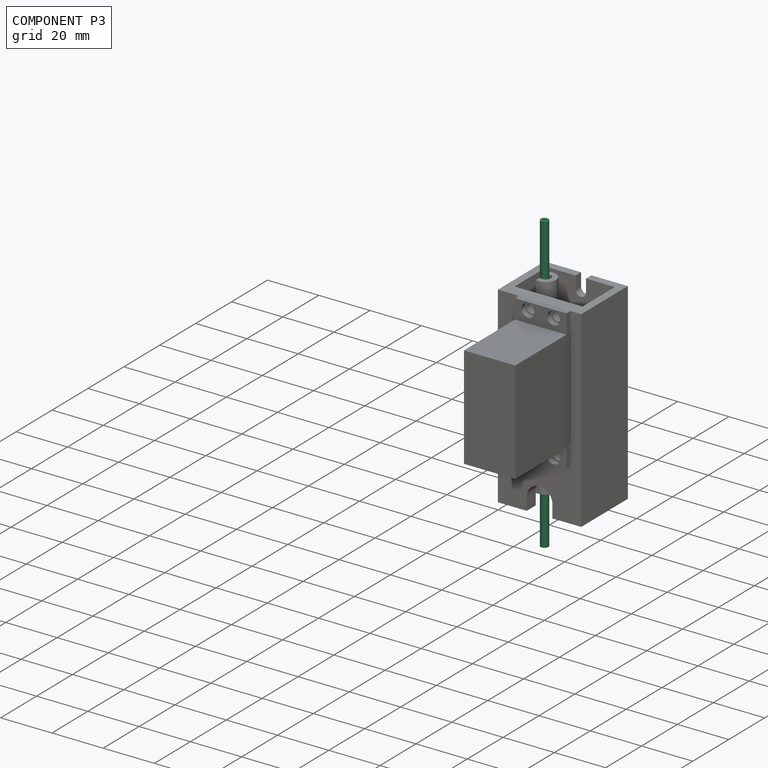
[diagram: component P3 — assembled]
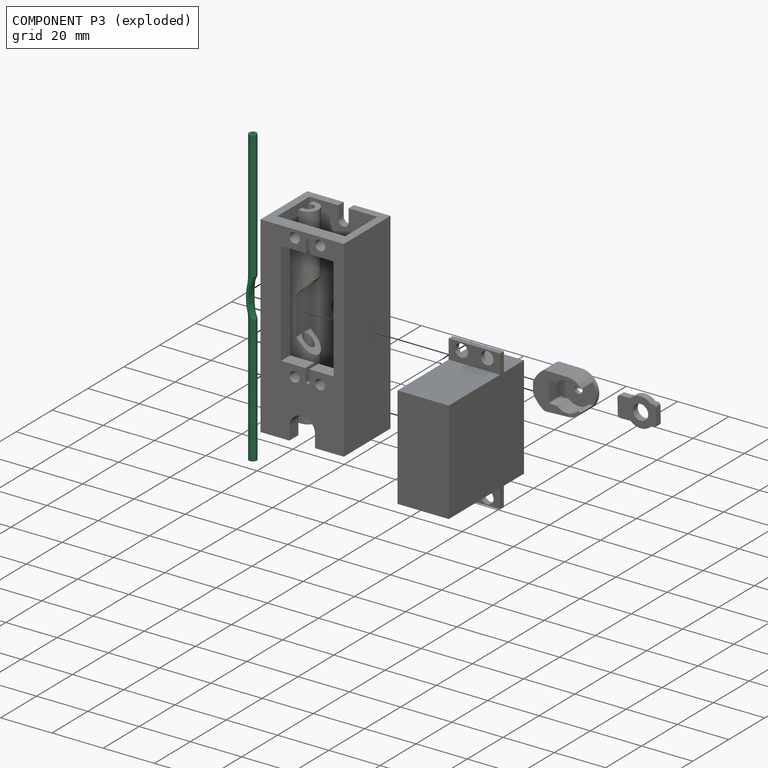
[diagram: component P3 — exploded]
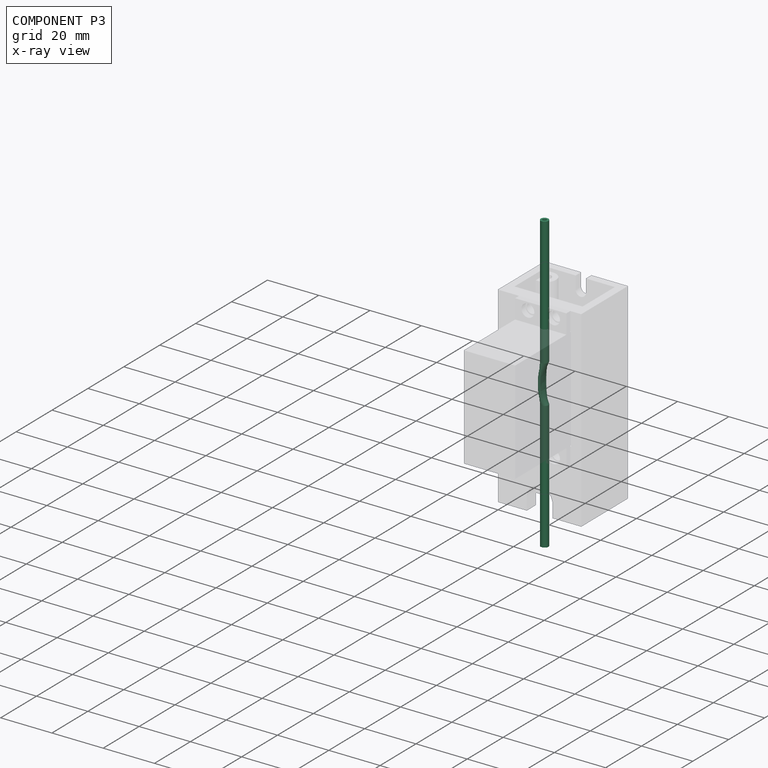
[diagram: component P3 — x-ray view]
COMPONENT P3 — recipe-attached ("Tube", a linked part whose construction recipe lives in a companion FreeCAD document of the same project; that document's serialized recipe follows).
Held by: resting contact with P0 (derived edge); resting contact with P4 (derived edge).
Construction recipe (the companion document, serialized — sketch geometry with constraints, then the solid features built on it; lengths are millimeters unless a unit is written):

FCSTD DOCUMENT  (FreeCAD 1.1R20260414 (Git shallow))
Label: Tube
Comment: Source: ServoQuetsch https://gitlab.com/mikeventor1/ServoQuetsch (CERN-OHL-P-2.0). Multi-file bundle: parts driven by VarSet in V.FCStd.
License: CERN Open Hardware Licence Version 2 - Permissive
LicenseURL: https://ohwr.org/cernohl
objects: Sketcher::SketchObject×5, Part::DatumPlane×2, PartDesign::Pad×2, App::Point×1, PartDesign::AdditiveLoft×1, PartDesign::Body×1
note: 20 computed .brp shape members not serialized (recipe doc carries the construction recipe); baked Part::Feature solids carry a one-line shape summary decoded from their .brp
EXTERNAL_REF file=V.FCStd obj=VarSet

FEATURE [App::Point] Origin001  label="Ursprung"
  Role = Origin
FEATURE [Sketcher::SketchObject] Sketch
  ArcFitTolerance = 1e-06
  AttachmentSupport = -> [Origin]
  ExternalTypes = [0]
  FullyConstrained = true
  MakeInternals = false
  MapMode = 5
  Placement = pos=(0,0,0) rot=(1,0,0;1.5708rad)
  _ExternalGeoVersion = 1
  expr: Constraints[8] = <<V>>#<<VarSet>>.TubeOD / 2
  sketch-geometry (4):
    g0: ArcOfCircle CenterX=1 CenterY=1.5 CenterZ=0 NormalX=0 NormalY=0 NormalZ=1 AngleXU=0 Radius=0.5 StartAngle=-1.95e-14 EndAngle=3.14159
    g1: ArcOfCircle CenterX=1 CenterY=-1.5 CenterZ=0 NormalX=0 NormalY=0 NormalZ=1 AngleXU=0 Radius=0.5 StartAngle=3.14159 EndAngle=6.28319
    g2: LineSegment StartX=1.5 StartY=1.5 StartZ=0 EndX=1.5 EndY=-1.5 EndZ=0
    g3: LineSegment StartX=0.5 StartY=1.5 StartZ=0 EndX=0.5 EndY=-1.5 EndZ=0
  constraints (9):
    c: Tangent(g0,g2) = 1.5708
    c: Tangent(g0,g3) = -1.5708
    c: Tangent(g1,g2) = 1.5708
    c: Tangent(g1,g3) = -1.5708
    c: Equal(g0,g1)
    c: Radius(g0) = 0.5
    c: DistanceY(g1,g0) = 3
    c: Symmetric(g0,g1,g-1)
    c: DistanceX(g-1,g0) = 1.5
FEATURE [Part::DatumPlane] DatumPlane
  AttachmentOffset = pos=(0,0,7.5) rot=(0,0,1;0rad)
  AttachmentSupport = -> [Origin]
  MapMode = 5
  Placement = pos=(0,-7.5,1.7e-15) rot=(1,0,0;1.5708rad)
  expr: .AttachmentOffset.Base.z = <<V>>#<<VarSet>>.CutoutH / 2
FEATURE [Part::DatumPlane] DatumPlane001
  AttachmentOffset = pos=(0,0,-7.5) rot=(0,0,1;0rad)
  AttachmentSupport = -> [Origin]
  MapMode = 5
  Placement = pos=(0,7.5,-1.7e-15) rot=(1,0,0;1.5708rad)
  expr: .AttachmentOffset.Base.z = -<<V>>#<<VarSet>>.CutoutH / 2
FEATURE [Sketcher::SketchObject] Sketch001
  ArcFitTolerance = 1e-06
  AttachmentSupport = -> [DatumPlane]
  ExternalTypes = [0]
  FullyConstrained = true
  MakeInternals = false
  MapMode = 5
  Placement = pos=(0,-7.5,1.7e-15) rot=(1,0,0;1.5708rad)
  _ExternalGeoVersion = 1
  expr: Constraints[1] = <<V>>#<<VarSet>>.TubeOD
  sketch-geometry (1):
    g0: Circle CenterX=0 CenterY=0 CenterZ=0 NormalX=0 NormalY=0 NormalZ=1 AngleXU=0 Radius=1.5
  constraints (2):
    c: Coincident(g0,g-1)
    c: Diameter(g0) = 3
FEATURE [Sketcher::SketchObject] Sketch002
  ArcFitTolerance = 1e-06
  AttachmentSupport = -> [DatumPlane001]
  ExternalTypes = [0]
  FullyConstrained = true
  MakeInternals = false
  MapMode = 5
  Placement = pos=(0,7.5,-1.7e-15) rot=(1,0,0;1.5708rad)
  _ExternalGeoVersion = 1
  expr: Constraints[1] = <<V>>#<<VarSet>>.TubeOD
  sketch-geometry (1):
    g0: Circle CenterX=0 CenterY=0 CenterZ=0 NormalX=0 NormalY=0 NormalZ=1 AngleXU=0 Radius=1.5
  constraints (2):
    c: Coincident(g0,g-1)
    c: Diameter(g0) = 3
FEATURE [PartDesign::AdditiveLoft] AdditiveLoft
  Closed = false
  Placement = pos=(0,-7.5,1.7e-15) rot=(1,0,0;1.5708rad)
  Profile = -> Sketch001
  Ruled = false
  Sections = -> [Sketch,Sketch002]
  Suppressed = false
FEATURE [Sketcher::SketchObject] Sketch003
  ArcFitTolerance = 1e-06
  AttachmentSupport = -> [DatumPlane]
  ExternalTypes = [0]
  FullyConstrained = true
  MakeInternals = false
  MapMode = 5
  Placement = pos=(0,-7.5,1.7e-15) rot=(1,0,0;1.5708rad)
  _ExternalGeoVersion = 1
  expr: Constraints[2] = <<V>>#<<VarSet>>.TubeID
  expr: Constraints[3] = <<V>>#<<VarSet>>.TubeOD
  sketch-geometry (2):
    g0: Circle CenterX=0 CenterY=0 CenterZ=0 NormalX=0 NormalY=0 NormalZ=1 AngleXU=0 Radius=0.75
    g1: Circle CenterX=0 CenterY=0 CenterZ=0 NormalX=0 NormalY=0 NormalZ=1 AngleXU=0 Radius=1.5
  constraints (4):
    c: Coincident(g0,g-1)
    c: Coincident(g1,g0)
    c: Diameter(g0) = 1.5
    c: Diameter(g1) = 3
FEATURE [Sketcher::SketchObject] Sketch004
  ArcFitTolerance = 1e-06
  AttachmentSupport = -> [DatumPlane001]
  ExternalTypes = [0]
  FullyConstrained = true
  MakeInternals = false
  MapMode = 5
  Placement = pos=(0,7.5,-1.7e-15) rot=(1,0,0;1.5708rad)
  _ExternalGeoVersion = 1
  expr: Constraints[2] = <<V>>#<<VarSet>>.TubeID
  expr: Constraints[3] = <<V>>#<<VarSet>>.TubeOD
  sketch-geometry (2):
    g0: Circle CenterX=0 CenterY=0 CenterZ=0 NormalX=0 NormalY=0 NormalZ=1 AngleXU=0 Radius=0.75
    g1: Circle CenterX=0 CenterY=0 CenterZ=0 NormalX=0 NormalY=0 NormalZ=1 AngleXU=0 Radius=1.5
  constraints (4):
    c: Coincident(g0,g-1)
    c: Coincident(g1,g0)
    c: Diameter(g0) = 1.5
    c: Diameter(g1) = 3
FEATURE [PartDesign::Pad] Pad
  BaseFeature = -> AdditiveLoft
  Direction = (0,-1,2e-16)
  Length = 50
  Length2 = 10
  Placement = pos=(0,-7.5,1.7e-15) rot=(1,0,0;1.5708rad)
  Profile = -> Sketch003
  ReferenceAxis = -> Sketch003 [N_Axis]
  SideType = 0
  Suppressed = false
  Type = 0
  Type2 = 0
  expr: Length = <<V>>#<<VarSet>>.TubeEndLen
FEATURE [PartDesign::Pad] Pad001
  BaseFeature = -> Pad
  Direction = (0,-1,2e-16)
  Length = 50
  Length2 = 10
  Placement = pos=(0,-7.5,1.7e-15) rot=(1,0,0;1.5708rad)
  Profile = -> Sketch004
  ReferenceAxis = -> Sketch004 [N_Axis]
  Reversed = true
  SideType = 0
  Suppressed = false
  Type = 0
  Type2 = 0
  expr: Length = <<V>>#<<VarSet>>.TubeEndLen
FEATURE [PartDesign::Body] Body  label="Tube"
  AllowCompound = false
  Group = -> [Sketch,DatumPlane,DatumPlane001,Sketch001,Sketch002,AdditiveLoft,Sketch003,Sketch004,Pad,Pad001]
  Origin = -> Origin
  Tip = -> Pad001
PROVENANCE & LICENSES
Assembly and component geometry: a FreeCAD (.FCStd) document from a public repository crawl; components, placements and joints were extracted with FreeCAD and each solid tessellated.
Construction recipes: the document's own serialized feature recipes (and, for linked parts, the recipes of companion documents from the same project).
License: as declared in the source repository (recorded in the dataset sidecar).
Joints: native FreeCAD joints and A2plus constraints are mapped to standard mate types; edges marked 'derived from contact' connect touching components and are measured from the geometry, not modeled.
Verification: 3 of this assembly's 5 components carry a construction recipe (3 from linked companion documents in the same project); the rest are geometry-only. Every component's tessellation passed the extraction mesh gates (mesh-volume checksum against the B-rep where available, bounding-box inflation <= 2%).
Renders: orthographic iso camera (az 35 / el 25); the floor grid conveys scale (grid pitch printed in each image; no ruler). In the exploded view each component is displaced by its stored offset vector: the offsets alone carry the explosion direction (mate normal/axis signs are not orientation cues and do not encode it), and separation distances are assigned per mate-chain, not proportionally to assembly-order depth.
